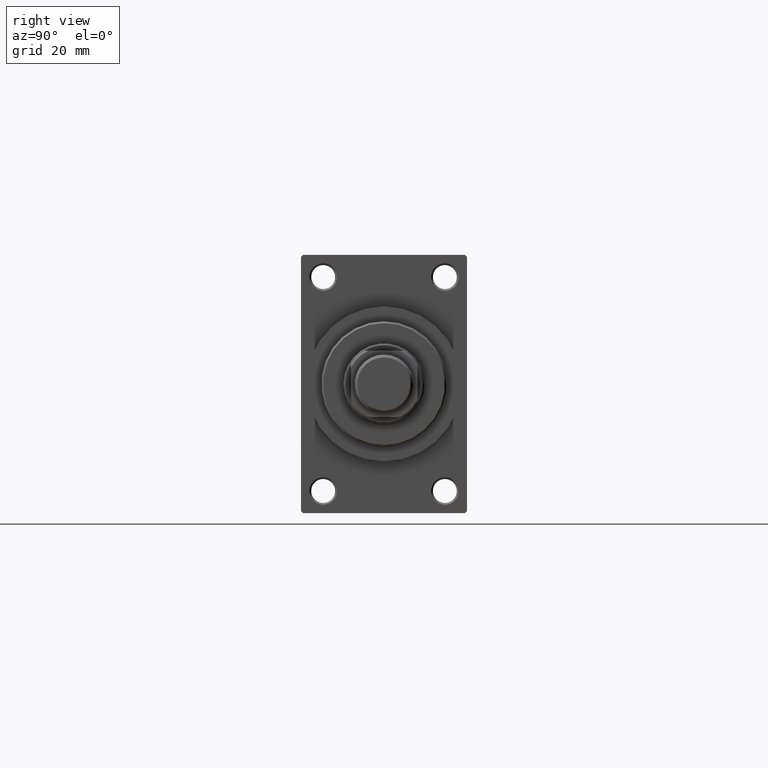
[diagram: clean part render]
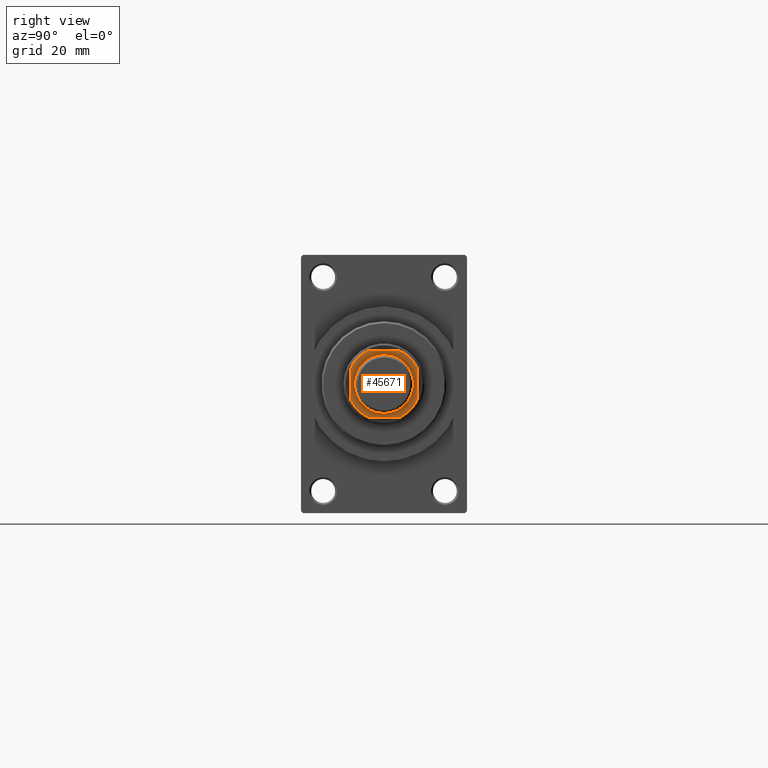
[diagram: same view with one face highlighted and labeled with its STEP entity id]
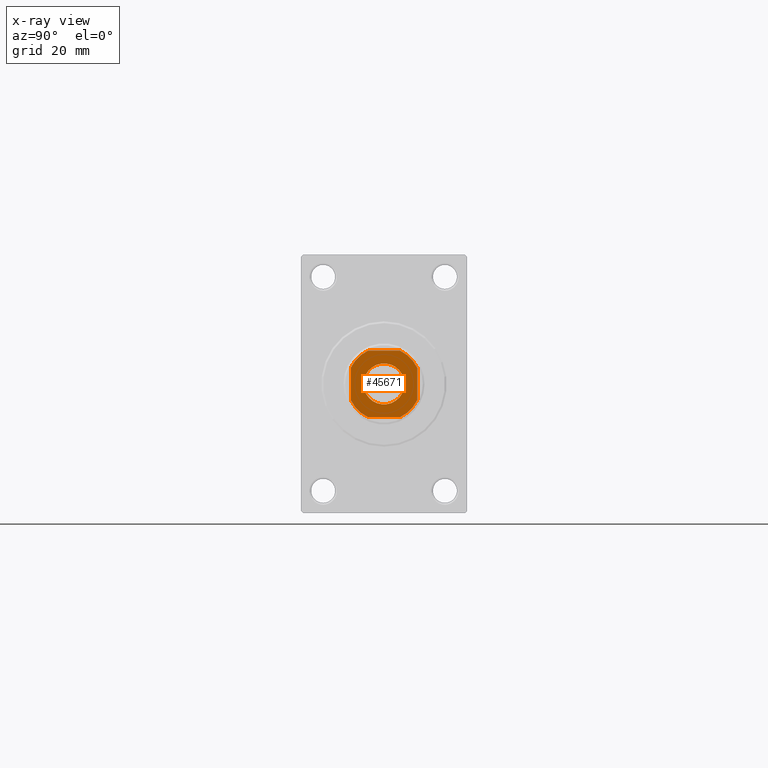
[diagram: x-ray of the same camera — body ghosted, the highlighted face saturated]
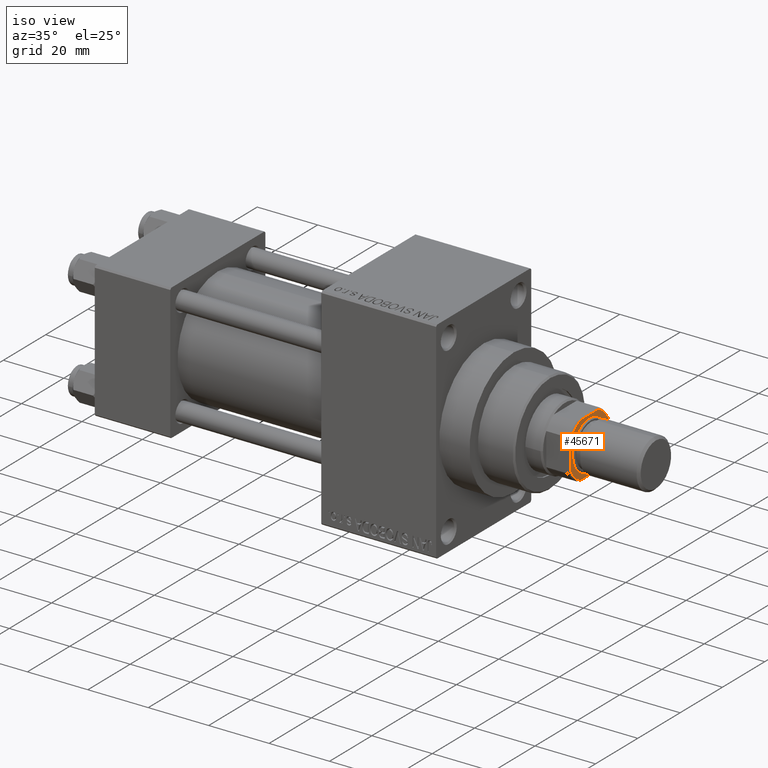
[diagram: same view with one face highlighted and labeled with its STEP entity id]
A machine part, right view. The second image highlights one B-rep face of the part: STEP entity #45671.
The next image is the same camera in x-ray: the body ghosted, the highlighted face saturated — about 0% of this face is hidden behind the body in this view.
A second angle (iso view) of the same face is appended — the face is thin or edge-on in the first view.
In plain terms, the highlighted planar face has unit normal (1, 0, 0).
Its self-contained STEP definition (entity closure, byte-faithful):
#402 = EDGE_CURVE ( 'NONE', #39327, #22443, #38317, .T. ) ;
#1137 = ORIENTED_EDGE ( 'NONE', *, *, #40834, .T. ) ;
#1389 = VECTOR ( 'NONE', #4933, 1000.000000000000000 ) ;
#1707 = DIRECTION ( 'NONE',  ( 1.000000000000000000, 0.000000000000000000, 0.000000000000000000 ) ) ;
#1830 = VECTOR ( 'NONE', #19122, 1000.000000000000000 ) ;
#2073 = DIRECTION ( 'NONE',  ( 1.000000000000000000, 0.000000000000000000, 0.000000000000000000 ) ) ;
#2913 = ORIENTED_EDGE ( 'NONE', *, *, #36994, .T. ) ;
#3188 = CARTESIAN_POINT ( 'NONE',  ( -4.358898943540667759, -9.000000000000001776, 123.0000000000000000 ) ) ;
#3601 = DIRECTION ( 'NONE',  ( 1.000000000000000000, 0.000000000000000000, 0.000000000000000000 ) ) ;
#3645 = AXIS2_PLACEMENT_3D ( 'NONE', #11007, #43977, #43511 ) ;
#4313 = VERTEX_POINT ( 'NONE', #38088 ) ;
#4933 = DIRECTION ( 'NONE',  ( 9.637352644315595243E-17, -1.000000000000000000, 0.000000000000000000 ) ) ;
#5538 = CARTESIAN_POINT ( 'NONE',  ( 0.000000000000000000, 0.000000000000000000, 123.0000000000000000 ) ) ;
#7231 = CIRCLE ( 'NONE', #24160, 5.550000000000013145 ) ;
#10786 = EDGE_CURVE ( 'NONE', #31419, #43195, #14208, .T. ) ;
#11007 = CARTESIAN_POINT ( 'NONE',  ( 0.000000000000000000, 0.000000000000000000, 123.0000000000000000 ) ) ;
#11476 = EDGE_LOOP ( 'NONE', ( #31015, #16990 ) ) ;
#11742 = CARTESIAN_POINT ( 'NONE',  ( 5.550000000000013145, 0.000000000000000000, 123.0000000000000000 ) ) ;
#11906 = LINE ( 'NONE', #26340, #1389 ) ;
#12043 = CARTESIAN_POINT ( 'NONE',  ( 4.358898943540667759, -9.000000000000001776, 123.0000000000000000 ) ) ;
#12586 = EDGE_CURVE ( 'NONE', #22443, #29454, #45014, .T. ) ;
#12676 = AXIS2_PLACEMENT_3D ( 'NONE', #14478, #43829, #25768 ) ;
#13482 = VERTEX_POINT ( 'NONE', #30336 ) ;
#13639 = VERTEX_POINT ( 'NONE', #11742 ) ;
#14149 = CARTESIAN_POINT ( 'NONE',  ( -9.000000000000003553, 4.358898943540662430, 123.0000000000000000 ) ) ;
#14151 = PLANE ( 'NONE',  #3645 ) ;
#14204 = CARTESIAN_POINT ( 'NONE',  ( 0.000000000000000000, 0.000000000000000000, 123.0000000000000000 ) ) ;
#14208 = CIRCLE ( 'NONE', #12676, 9.999999999999996447 ) ;
#14478 = CARTESIAN_POINT ( 'NONE',  ( 0.000000000000000000, 0.000000000000000000, 123.0000000000000000 ) ) ;
#14600 = ORIENTED_EDGE ( 'NONE', *, *, #10786, .T. ) ;
#16990 = ORIENTED_EDGE ( 'NONE', *, *, #29725, .T. ) ;
#17999 = EDGE_LOOP ( 'NONE', ( #47176, #34161, #2913, #14600, #1137, #29820, #41126, #43469 ) ) ;
#19122 = DIRECTION ( 'NONE',  ( 1.000000000000000000, 0.000000000000000000, 0.000000000000000000 ) ) ;
#19673 = CARTESIAN_POINT ( 'NONE',  ( 8.999999999999998224, -4.358898943540672200, 123.0000000000000000 ) ) ;
#21365 = AXIS2_PLACEMENT_3D ( 'NONE', #46443, #45977, #35354 ) ;
#21730 = VERTEX_POINT ( 'NONE', #12043 ) ;
#22109 = AXIS2_PLACEMENT_3D ( 'NONE', #5538, #38965, #27902 ) ;
#22377 = DIRECTION ( 'NONE',  ( 0.000000000000000000, -0.000000000000000000, -1.000000000000000000 ) ) ;
#22443 = VERTEX_POINT ( 'NONE', #40902 ) ;
#22638 = AXIS2_PLACEMENT_3D ( 'NONE', #35358, #28385, #1707 ) ;
#22738 = CARTESIAN_POINT ( 'NONE',  ( -4.358898943540671311, 8.999999999999998224, 123.0000000000000000 ) ) ;
#23456 = CARTESIAN_POINT ( 'NONE',  ( -9.000000000000001776, -9.000000000000001776, 123.0000000000000000 ) ) ;
#23890 = EDGE_CURVE ( 'NONE', #39676, #21730, #37377, .T. ) ;
#24160 = AXIS2_PLACEMENT_3D ( 'NONE', #14204, #22377, #3601 ) ;
#24182 = CIRCLE ( 'NONE', #22638, 5.550000000000013145 ) ;
#24705 = CARTESIAN_POINT ( 'NONE',  ( -9.000000000000003553, 8.999999999999998224, 123.0000000000000000 ) ) ;
#24947 = LINE ( 'NONE', #24705, #45933 ) ;
#25338 = EDGE_CURVE ( 'NONE', #13639, #13482, #7231, .T. ) ;
#25371 = VECTOR ( 'NONE', #38075, 1000.000000000000000 ) ;
#25768 = DIRECTION ( 'NONE',  ( 1.000000000000000000, 0.000000000000000000, 0.000000000000000000 ) ) ;
#26340 = CARTESIAN_POINT ( 'NONE',  ( -9.000000000000003553, 8.999999999999998224, 123.0000000000000000 ) ) ;
#27902 = DIRECTION ( 'NONE',  ( 1.000000000000000000, 0.000000000000000000, 0.000000000000000000 ) ) ;
#28385 = DIRECTION ( 'NONE',  ( 0.000000000000000000, -0.000000000000000000, -1.000000000000000000 ) ) ;
#29454 = VERTEX_POINT ( 'NONE', #33224 ) ;
#29638 = AXIS2_PLACEMENT_3D ( 'NONE', #30964, #38651, #2073 ) ;
#29725 = EDGE_CURVE ( 'NONE', #13482, #13639, #24182, .T. ) ;
#29820 = ORIENTED_EDGE ( 'NONE', *, *, #37508, .T. ) ;
#30336 = CARTESIAN_POINT ( 'NONE',  ( -5.550000000000013145, 6.796789735267826558E-16, 123.0000000000000000 ) ) ;
#30964 = CARTESIAN_POINT ( 'NONE',  ( 0.000000000000000000, 0.000000000000000000, 123.0000000000000000 ) ) ;
#31015 = ORIENTED_EDGE ( 'NONE', *, *, #25338, .T. ) ;
#31419 = VERTEX_POINT ( 'NONE', #22738 ) ;
#33224 = CARTESIAN_POINT ( 'NONE',  ( 4.358898943540597593, 8.999999999999998224, 123.0000000000000000 ) ) ;
#34161 = ORIENTED_EDGE ( 'NONE', *, *, #12586, .T. ) ;
#35354 = DIRECTION ( 'NONE',  ( 1.000000000000000000, 0.000000000000000000, 0.000000000000000000 ) ) ;
#35358 = CARTESIAN_POINT ( 'NONE',  ( 0.000000000000000000, 0.000000000000000000, 123.0000000000000000 ) ) ;
#35762 = DIRECTION ( 'NONE',  ( -1.000000000000000000, -0.000000000000000000, -0.000000000000000000 ) ) ;
#36044 = FACE_OUTER_BOUND ( 'NONE', #17999, .T. ) ;
#36570 = EDGE_CURVE ( 'NONE', #21730, #39327, #42846, .T. ) ;
#36994 = EDGE_CURVE ( 'NONE', #29454, #31419, #24947, .T. ) ;
#37377 = LINE ( 'NONE', #23456, #1830 ) ;
#37492 = CIRCLE ( 'NONE', #21365, 9.999999999999998224 ) ;
#37508 = EDGE_CURVE ( 'NONE', #4313, #39676, #37492, .T. ) ;
#38075 = DIRECTION ( 'NONE',  ( -1.927470528863119049E-16, 1.000000000000000000, -0.000000000000000000 ) ) ;
#38088 = CARTESIAN_POINT ( 'NONE',  ( -9.000000000000003553, -4.358898943540665094, 123.0000000000000000 ) ) ;
#38317 = LINE ( 'NONE', #46238, #25371 ) ;
#38651 = DIRECTION ( 'NONE',  ( -0.000000000000000000, 0.000000000000000000, 1.000000000000000000 ) ) ;
#38965 = DIRECTION ( 'NONE',  ( -0.000000000000000000, 0.000000000000000000, 1.000000000000000000 ) ) ;
#39327 = VERTEX_POINT ( 'NONE', #19673 ) ;
#39676 = VERTEX_POINT ( 'NONE', #3188 ) ;
#40834 = EDGE_CURVE ( 'NONE', #43195, #4313, #11906, .T. ) ;
#40902 = CARTESIAN_POINT ( 'NONE',  ( 8.999999999999998224, 4.358898943540600257, 123.0000000000000000 ) ) ;
#41126 = ORIENTED_EDGE ( 'NONE', *, *, #23890, .T. ) ;
#42846 = CIRCLE ( 'NONE', #22109, 9.999999999999998224 ) ;
#43195 = VERTEX_POINT ( 'NONE', #14149 ) ;
#43469 = ORIENTED_EDGE ( 'NONE', *, *, #36570, .T. ) ;
#43511 = DIRECTION ( 'NONE',  ( 1.000000000000000000, 0.000000000000000000, 0.000000000000000000 ) ) ;
#43829 = DIRECTION ( 'NONE',  ( -0.000000000000000000, 0.000000000000000000, 1.000000000000000000 ) ) ;
#43977 = DIRECTION ( 'NONE',  ( -0.000000000000000000, 0.000000000000000000, 1.000000000000000000 ) ) ;
#44216 = FACE_BOUND ( 'NONE', #11476, .T. ) ;
#45014 = CIRCLE ( 'NONE', #29638, 9.999999999999966249 ) ;
#45671 = ADVANCED_FACE ( 'NONE', ( #44216, #36044 ), #14151, .T. ) ;
#45933 = VECTOR ( 'NONE', #35762, 1000.000000000000000 ) ;
#45977 = DIRECTION ( 'NONE',  ( -0.000000000000000000, 0.000000000000000000, 1.000000000000000000 ) ) ;
#46238 = CARTESIAN_POINT ( 'NONE',  ( 8.999999999999996447, 8.999999999999998224, 123.0000000000000000 ) ) ;
#46443 = CARTESIAN_POINT ( 'NONE',  ( 0.000000000000000000, 0.000000000000000000, 123.0000000000000000 ) ) ;
#47176 = ORIENTED_EDGE ( 'NONE', *, *, #402, .T. ) ;